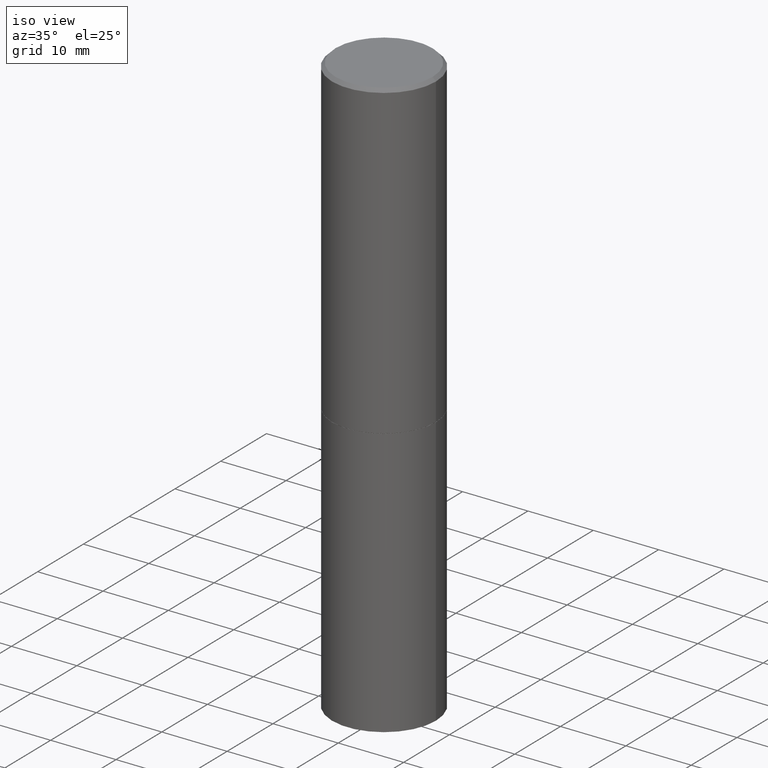
[diagram: clean part render]
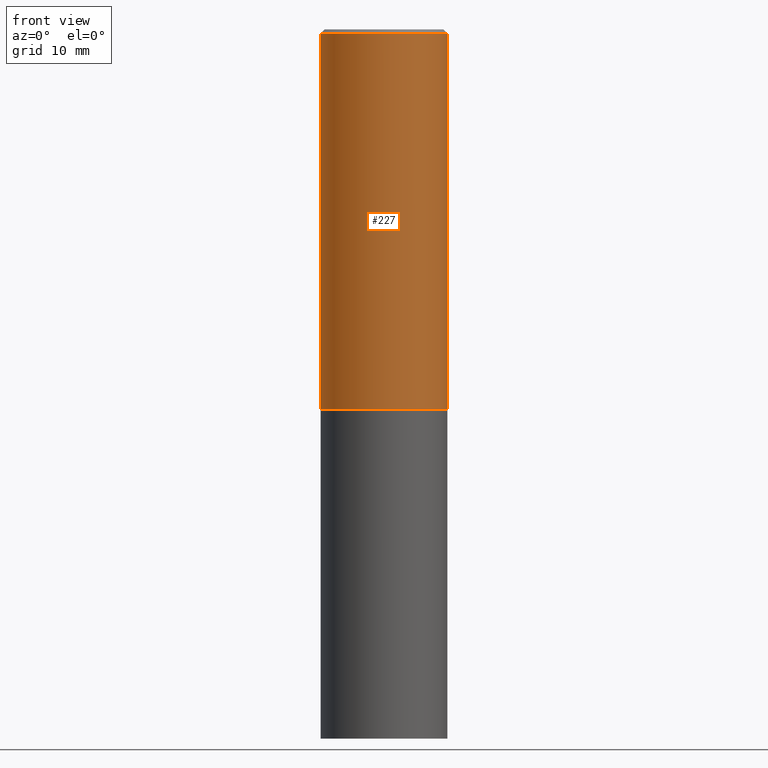
[diagram: tour spotlight — one face highlighted and labeled with its STEP entity id]
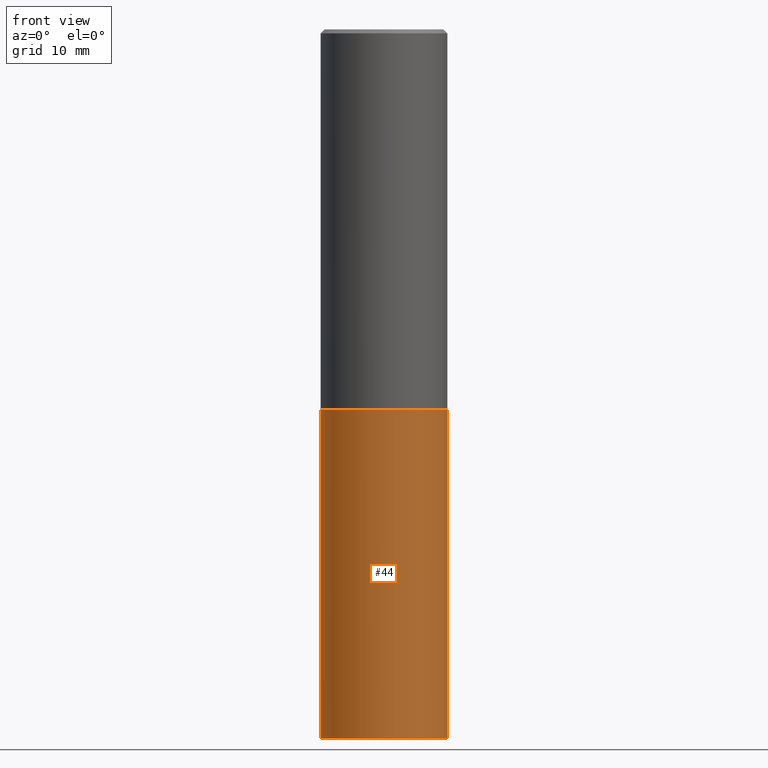
[diagram: tour spotlight — one face highlighted and labeled with its STEP entity id]
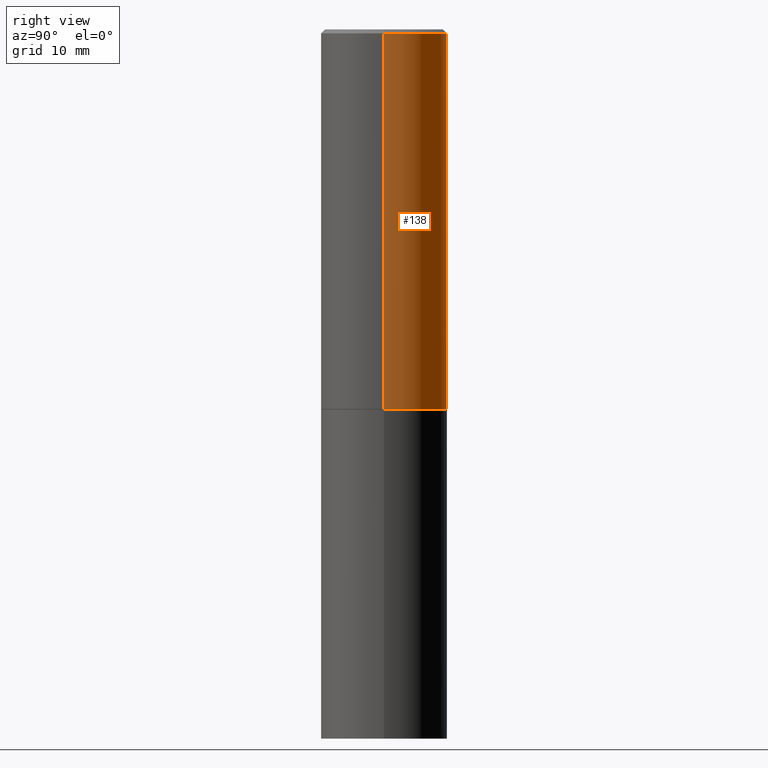
[diagram: tour spotlight — one face highlighted and labeled with its STEP entity id]
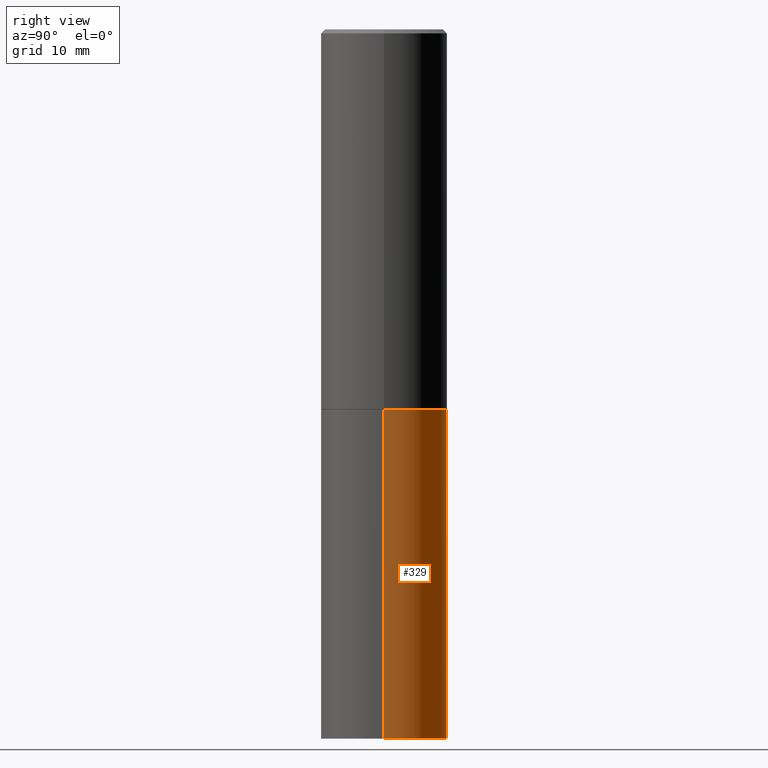
[diagram: tour spotlight — one face highlighted and labeled with its STEP entity id]
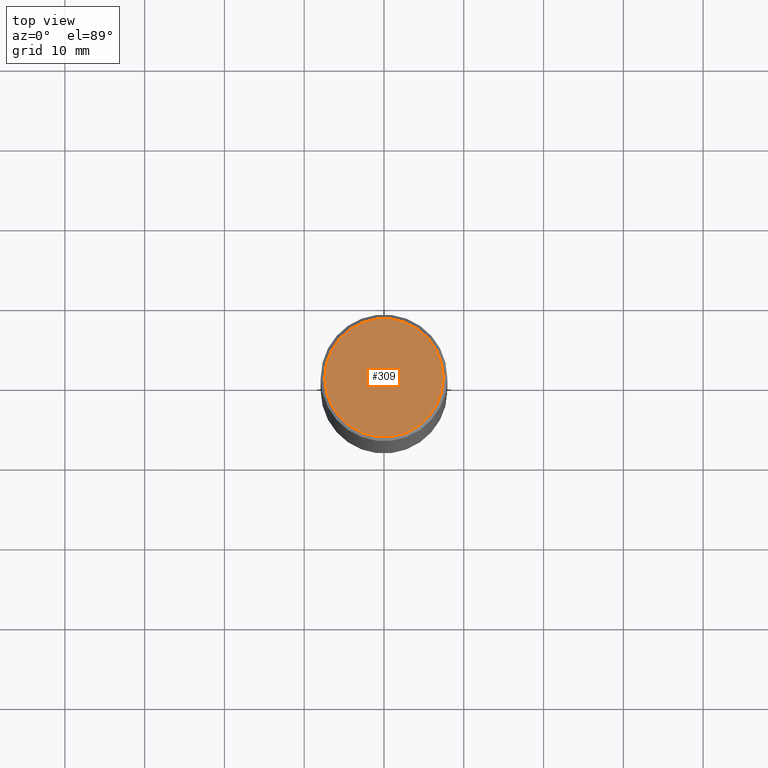
[diagram: tour spotlight — one face highlighted and labeled with its STEP entity id]
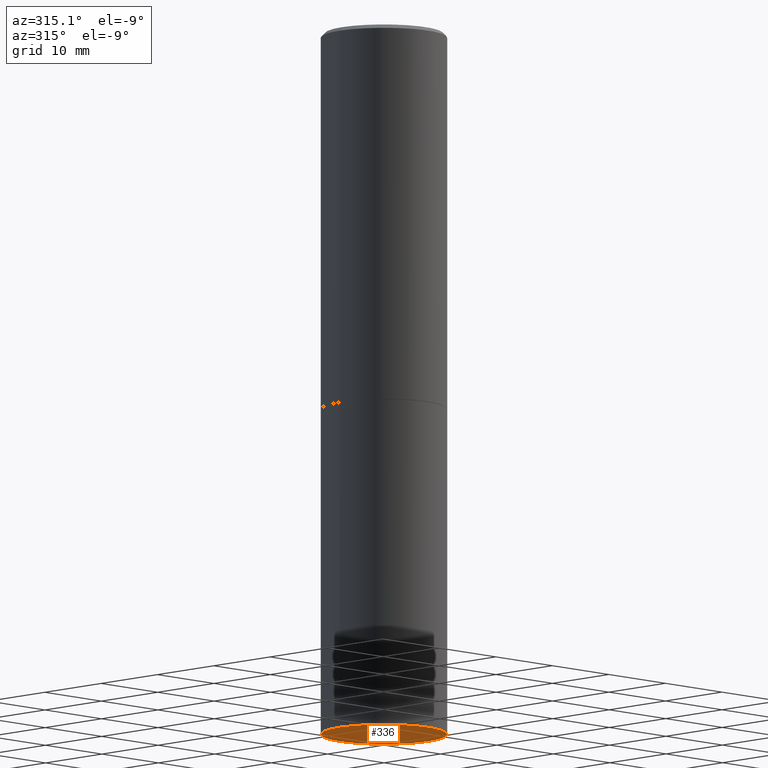
[diagram: tour spotlight — one face highlighted and labeled with its STEP entity id]
A machine part: a face-by-face anatomy tour. The part has 12 B-rep faces; the first image is the clean iso view, then the 6 largest visible faces are spotlighted one at a time (largest first), each with its STEP entity span.

Face 1 — front view, entity #227. In plain terms, the highlighted cylindrical surface (partial cylindrical patch) has radius 7.9375 mm, axis along (-0, 0, 1).
Definition (entity closure, byte-faithful):
#8 = VERTEX_POINT ( 'NONE', #106 ) ;
#38 = DIRECTION ( 'NONE',  ( 1.000000000000000000, -6.982962677686266711E-15, 4.876176775795935232E-29 ) ) ;
#48 = LINE ( 'NONE', #95, #50 ) ;
#50 = VECTOR ( 'NONE', #271, 39.37007874015748143 ) ;
#54 = EDGE_CURVE ( 'NONE', #8, #322, #147, .T. ) ;
#61 = FACE_OUTER_BOUND ( 'NONE', #64, .T. ) ;
#62 = ORIENTED_EDGE ( 'NONE', *, *, #54, .F. ) ;
#64 = EDGE_LOOP ( 'NONE', ( #150, #153, #262, #62 ) ) ;
#65 = LINE ( 'NONE', #289, #269 ) ;
#69 = CARTESIAN_POINT ( 'NONE',  ( 0.3125000000000000000, -8.725211865769012469E-15, -1.873999999999999666 ) ) ;
#95 = CARTESIAN_POINT ( 'NONE',  ( 0.3124999999999998890, -2.182175836776957558E-15, 1.523805242436229235E-29 ) ) ;
#106 = CARTESIAN_POINT ( 'NONE',  ( -0.3124999999999997224, 2.112346210000093471E-15, -0.02000000000000007674 ) ) ;
#124 = CIRCLE ( 'NONE', #187, 0.3125000000000000000 ) ;
#127 = DIRECTION ( 'NONE',  ( -2.445468806185136597E-29, 3.491481338843145583E-15, 1.000000000000000000 ) ) ;
#128 = CARTESIAN_POINT ( 'NONE',  ( 4.890937612370292426E-31, -6.982962677686317493E-17, -0.02000000000000007674 ) ) ;
#130 = AXIS2_PLACEMENT_3D ( 'NONE', #285, #255, #38 ) ;
#147 = CIRCLE ( 'NONE', #202, 0.3124999999999997224 ) ;
#150 = ORIENTED_EDGE ( 'NONE', *, *, #212, .F. ) ;
#153 = ORIENTED_EDGE ( 'NONE', *, *, #283, .T. ) ;
#175 = DIRECTION ( 'NONE',  ( -2.445468806185136877E-29, 3.491481338843145188E-15, 1.000000000000000000 ) ) ;
#181 = CYLINDRICAL_SURFACE ( 'NONE', #130, 0.3124999999999998890 ) ;
#187 = AXIS2_PLACEMENT_3D ( 'NONE', #274, #127, #245 ) ;
#202 = AXIS2_PLACEMENT_3D ( 'NONE', #128, #244, #355 ) ;
#212 = EDGE_CURVE ( 'NONE', #347, #8, #65, .T. ) ;
#227 = ADVANCED_FACE ( 'NONE', ( #61 ), #181, .T. ) ;
#244 = DIRECTION ( 'NONE',  ( -2.445468806185136597E-29, 3.491481338843145583E-15, 1.000000000000000000 ) ) ;
#245 = DIRECTION ( 'NONE',  ( 1.000000000000000000, -6.982962677686265133E-15, 0.000000000000000000 ) ) ;
#255 = DIRECTION ( 'NONE',  ( -2.445468806185136597E-29, 3.491481338843145583E-15, 1.000000000000000000 ) ) ;
#262 = ORIENTED_EDGE ( 'NONE', *, *, #302, .T. ) ;
#269 = VECTOR ( 'NONE', #175, 39.37007874015748143 ) ;
#271 = DIRECTION ( 'NONE',  ( -2.445468806185136877E-29, 3.491481338843145188E-15, 1.000000000000000000 ) ) ;
#274 = CARTESIAN_POINT ( 'NONE',  ( 4.582808542790944955E-29, -6.543036028992054122E-15, -1.873999999999999666 ) ) ;
#283 = EDGE_CURVE ( 'NONE', #347, #325, #124, .T. ) ;
#285 = CARTESIAN_POINT ( 'NONE',  ( 0.000000000000000000, 0.000000000000000000, 0.000000000000000000 ) ) ;
#289 = CARTESIAN_POINT ( 'NONE',  ( -0.3124999999999998890, 2.220446049250312292E-15, -1.537167215704657391E-29 ) ) ;
#302 = EDGE_CURVE ( 'NONE', #325, #322, #48, .T. ) ;
#322 = VERTEX_POINT ( 'NONE', #331 ) ;
#325 = VERTEX_POINT ( 'NONE', #69 ) ;
#331 = CARTESIAN_POINT ( 'NONE',  ( 0.3124999999999997224, -2.213735251080464939E-15, -0.02000000000000007674 ) ) ;
#332 = CARTESIAN_POINT ( 'NONE',  ( -0.3125000000000000000, -1.085986778634144643E-15, -1.873999999999999666 ) ) ;
#347 = VERTEX_POINT ( 'NONE', #332 ) ;
#355 = DIRECTION ( 'NONE',  ( 1.000000000000000000, -6.982962677686266711E-15, 0.000000000000000000 ) ) ;

Face 2 — front view, entity #44. In plain terms, the highlighted cylindrical surface (partial cylindrical patch) has radius 7.9375 mm, axis along (-0, 0, 1).
Definition (entity closure, byte-faithful):
#4 = VECTOR ( 'NONE', #78, 39.37007874015748143 ) ;
#9 = EDGE_CURVE ( 'NONE', #39, #41, #352, .T. ) ;
#11 = VERTEX_POINT ( 'NONE', #193 ) ;
#17 = CYLINDRICAL_SURFACE ( 'NONE', #356, 0.3125000000000000000 ) ;
#32 = ORIENTED_EDGE ( 'NONE', *, *, #9, .F. ) ;
#39 = VERTEX_POINT ( 'NONE', #275 ) ;
#41 = VERTEX_POINT ( 'NONE', #132 ) ;
#44 = ADVANCED_FACE ( 'NONE', ( #242 ), #17, .T. ) ;
#75 = DIRECTION ( 'NONE',  ( 1.000000000000000000, -6.982962677686266711E-15, 4.876176775795936353E-29 ) ) ;
#78 = DIRECTION ( 'NONE',  ( -2.445468806185136877E-29, 3.491481338843145188E-15, 1.000000000000000000 ) ) ;
#82 = VECTOR ( 'NONE', #161, 39.37007874015748143 ) ;
#87 = DIRECTION ( 'NONE',  ( -2.445468806185136597E-29, 3.491481338843145583E-15, 1.000000000000000000 ) ) ;
#93 = DIRECTION ( 'NONE',  ( 1.000000000000000000, -6.982962677686265133E-15, 0.000000000000000000 ) ) ;
#103 = CARTESIAN_POINT ( 'NONE',  ( 0.3125000000000000000, -2.182175836776958347E-15, 1.523805242436230075E-29 ) ) ;
#123 = ORIENTED_EDGE ( 'NONE', *, *, #251, .T. ) ;
#131 = LINE ( 'NONE', #103, #82 ) ;
#132 = CARTESIAN_POINT ( 'NONE',  ( -0.3125000000000000000, -7.162910048890640155E-15, -1.874999999999999778 ) ) ;
#161 = DIRECTION ( 'NONE',  ( -2.445468806185136877E-29, 3.491481338843145188E-15, 1.000000000000000000 ) ) ;
#162 = CIRCLE ( 'NONE', #206, 0.3125000000000000000 ) ;
#176 = DIRECTION ( 'NONE',  ( 1.000000000000000000, -6.982962677686269077E-15, 0.000000000000000000 ) ) ;
#193 = CARTESIAN_POINT ( 'NONE',  ( 0.3125000000000000000, -1.440236052272796769E-14, -3.500000000000000000 ) ) ;
#200 = EDGE_CURVE ( 'NONE', #41, #209, #343, .T. ) ;
#206 = AXIS2_PLACEMENT_3D ( 'NONE', #340, #87, #176 ) ;
#208 = DIRECTION ( 'NONE',  ( -2.445468806185136597E-29, 3.491481338843145583E-15, 1.000000000000000000 ) ) ;
#209 = VERTEX_POINT ( 'NONE', #346 ) ;
#218 = CARTESIAN_POINT ( 'NONE',  ( 0.000000000000000000, 0.000000000000000000, 0.000000000000000000 ) ) ;
#231 = CARTESIAN_POINT ( 'NONE',  ( 4.585254011597130558E-29, -6.546527510330897918E-15, -1.874999999999999778 ) ) ;
#236 = EDGE_LOOP ( 'NONE', ( #32, #123, #265, #259 ) ) ;
#242 = FACE_OUTER_BOUND ( 'NONE', #236, .T. ) ;
#251 = EDGE_CURVE ( 'NONE', #39, #11, #162, .T. ) ;
#259 = ORIENTED_EDGE ( 'NONE', *, *, #200, .F. ) ;
#265 = ORIENTED_EDGE ( 'NONE', *, *, #268, .T. ) ;
#268 = EDGE_CURVE ( 'NONE', #11, #209, #131, .T. ) ;
#275 = CARTESIAN_POINT ( 'NONE',  ( -0.3125000000000000000, -7.162910048890640155E-15, -3.500000000000000000 ) ) ;
#306 = AXIS2_PLACEMENT_3D ( 'NONE', #231, #208, #93 ) ;
#328 = CARTESIAN_POINT ( 'NONE',  ( -0.3125000000000000000, 2.220446049250313081E-15, -1.537167215704658232E-29 ) ) ;
#340 = CARTESIAN_POINT ( 'NONE',  ( 8.559140821647976968E-29, -1.222018468595100934E-14, -3.500000000000000000 ) ) ;
#343 = CIRCLE ( 'NONE', #306, 0.3125000000000000000 ) ;
#346 = CARTESIAN_POINT ( 'NONE',  ( 0.3125000000000000000, -8.728703347107855476E-15, -1.874999999999999778 ) ) ;
#352 = LINE ( 'NONE', #328, #4 ) ;
#353 = DIRECTION ( 'NONE',  ( -2.445468806185136597E-29, 3.491481338843145583E-15, 1.000000000000000000 ) ) ;
#356 = AXIS2_PLACEMENT_3D ( 'NONE', #218, #353, #75 ) ;

Face 3 — right view, entity #138. In plain terms, the highlighted cylindrical surface (partial cylindrical patch) has radius 7.9375 mm, axis along (-0, 0, 1).
Definition (entity closure, byte-faithful):
#8 = VERTEX_POINT ( 'NONE', #106 ) ;
#37 = AXIS2_PLACEMENT_3D ( 'NONE', #58, #145, #321 ) ;
#40 = DIRECTION ( 'NONE',  ( 1.000000000000000000, -6.982962677686266711E-15, 0.000000000000000000 ) ) ;
#48 = LINE ( 'NONE', #95, #50 ) ;
#50 = VECTOR ( 'NONE', #271, 39.37007874015748143 ) ;
#58 = CARTESIAN_POINT ( 'NONE',  ( 4.582808542790944955E-29, -6.543036028992054122E-15, -1.873999999999999666 ) ) ;
#65 = LINE ( 'NONE', #289, #269 ) ;
#66 = EDGE_LOOP ( 'NONE', ( #114, #92, #121, #68 ) ) ;
#68 = ORIENTED_EDGE ( 'NONE', *, *, #302, .F. ) ;
#69 = CARTESIAN_POINT ( 'NONE',  ( 0.3125000000000000000, -8.725211865769012469E-15, -1.873999999999999666 ) ) ;
#92 = ORIENTED_EDGE ( 'NONE', *, *, #212, .T. ) ;
#95 = CARTESIAN_POINT ( 'NONE',  ( 0.3124999999999998890, -2.182175836776957558E-15, 1.523805242436229235E-29 ) ) ;
#106 = CARTESIAN_POINT ( 'NONE',  ( -0.3124999999999997224, 2.112346210000093471E-15, -0.02000000000000007674 ) ) ;
#114 = ORIENTED_EDGE ( 'NONE', *, *, #171, .T. ) ;
#118 = DIRECTION ( 'NONE',  ( -2.445468806185136597E-29, 3.491481338843145583E-15, 1.000000000000000000 ) ) ;
#120 = DIRECTION ( 'NONE',  ( 1.000000000000000000, -6.982962677686266711E-15, 4.876176775795935232E-29 ) ) ;
#121 = ORIENTED_EDGE ( 'NONE', *, *, #151, .F. ) ;
#138 = ADVANCED_FACE ( 'NONE', ( #235 ), #205, .T. ) ;
#145 = DIRECTION ( 'NONE',  ( -2.445468806185136597E-29, 3.491481338843145583E-15, 1.000000000000000000 ) ) ;
#148 = AXIS2_PLACEMENT_3D ( 'NONE', #233, #316, #40 ) ;
#151 = EDGE_CURVE ( 'NONE', #322, #8, #317, .T. ) ;
#171 = EDGE_CURVE ( 'NONE', #325, #347, #261, .T. ) ;
#175 = DIRECTION ( 'NONE',  ( -2.445468806185136877E-29, 3.491481338843145188E-15, 1.000000000000000000 ) ) ;
#205 = CYLINDRICAL_SURFACE ( 'NONE', #249, 0.3124999999999998890 ) ;
#212 = EDGE_CURVE ( 'NONE', #347, #8, #65, .T. ) ;
#233 = CARTESIAN_POINT ( 'NONE',  ( 4.890937612370292426E-31, -6.982962677686317493E-17, -0.02000000000000007674 ) ) ;
#235 = FACE_OUTER_BOUND ( 'NONE', #66, .T. ) ;
#249 = AXIS2_PLACEMENT_3D ( 'NONE', #294, #118, #120 ) ;
#261 = CIRCLE ( 'NONE', #37, 0.3125000000000000000 ) ;
#269 = VECTOR ( 'NONE', #175, 39.37007874015748143 ) ;
#271 = DIRECTION ( 'NONE',  ( -2.445468806185136877E-29, 3.491481338843145188E-15, 1.000000000000000000 ) ) ;
#289 = CARTESIAN_POINT ( 'NONE',  ( -0.3124999999999998890, 2.220446049250312292E-15, -1.537167215704657391E-29 ) ) ;
#294 = CARTESIAN_POINT ( 'NONE',  ( 0.000000000000000000, 0.000000000000000000, 0.000000000000000000 ) ) ;
#302 = EDGE_CURVE ( 'NONE', #325, #322, #48, .T. ) ;
#316 = DIRECTION ( 'NONE',  ( -2.445468806185136597E-29, 3.491481338843145583E-15, 1.000000000000000000 ) ) ;
#317 = CIRCLE ( 'NONE', #148, 0.3124999999999997224 ) ;
#321 = DIRECTION ( 'NONE',  ( 1.000000000000000000, -6.982962677686265133E-15, 0.000000000000000000 ) ) ;
#322 = VERTEX_POINT ( 'NONE', #331 ) ;
#325 = VERTEX_POINT ( 'NONE', #69 ) ;
#331 = CARTESIAN_POINT ( 'NONE',  ( 0.3124999999999997224, -2.213735251080464939E-15, -0.02000000000000007674 ) ) ;
#332 = CARTESIAN_POINT ( 'NONE',  ( -0.3125000000000000000, -1.085986778634144643E-15, -1.873999999999999666 ) ) ;
#347 = VERTEX_POINT ( 'NONE', #332 ) ;

Face 4 — right view, entity #329. In plain terms, the highlighted cylindrical surface (partial cylindrical patch) has radius 7.9375 mm, axis along (-0, 0, 1).
Definition (entity closure, byte-faithful):
#1 = CARTESIAN_POINT ( 'NONE',  ( 4.585254011597130558E-29, -6.546527510330897918E-15, -1.874999999999999778 ) ) ;
#4 = VECTOR ( 'NONE', #78, 39.37007874015748143 ) ;
#5 = AXIS2_PLACEMENT_3D ( 'NONE', #1, #67, #122 ) ;
#9 = EDGE_CURVE ( 'NONE', #39, #41, #352, .T. ) ;
#11 = VERTEX_POINT ( 'NONE', #193 ) ;
#15 = FACE_OUTER_BOUND ( 'NONE', #288, .T. ) ;
#31 = DIRECTION ( 'NONE',  ( 1.000000000000000000, -6.982962677686269077E-15, 0.000000000000000000 ) ) ;
#39 = VERTEX_POINT ( 'NONE', #275 ) ;
#41 = VERTEX_POINT ( 'NONE', #132 ) ;
#55 = CIRCLE ( 'NONE', #5, 0.3125000000000000000 ) ;
#67 = DIRECTION ( 'NONE',  ( -2.445468806185136597E-29, 3.491481338843145583E-15, 1.000000000000000000 ) ) ;
#72 = DIRECTION ( 'NONE',  ( 1.000000000000000000, -6.982962677686266711E-15, 4.876176775795936353E-29 ) ) ;
#78 = DIRECTION ( 'NONE',  ( -2.445468806185136877E-29, 3.491481338843145188E-15, 1.000000000000000000 ) ) ;
#82 = VECTOR ( 'NONE', #161, 39.37007874015748143 ) ;
#103 = CARTESIAN_POINT ( 'NONE',  ( 0.3125000000000000000, -2.182175836776958347E-15, 1.523805242436230075E-29 ) ) ;
#104 = AXIS2_PLACEMENT_3D ( 'NONE', #348, #228, #31 ) ;
#108 = AXIS2_PLACEMENT_3D ( 'NONE', #125, #185, #72 ) ;
#119 = ORIENTED_EDGE ( 'NONE', *, *, #9, .T. ) ;
#122 = DIRECTION ( 'NONE',  ( 1.000000000000000000, -6.982962677686265133E-15, 0.000000000000000000 ) ) ;
#125 = CARTESIAN_POINT ( 'NONE',  ( 0.000000000000000000, 0.000000000000000000, 0.000000000000000000 ) ) ;
#131 = LINE ( 'NONE', #103, #82 ) ;
#132 = CARTESIAN_POINT ( 'NONE',  ( -0.3125000000000000000, -7.162910048890640155E-15, -1.874999999999999778 ) ) ;
#161 = DIRECTION ( 'NONE',  ( -2.445468806185136877E-29, 3.491481338843145188E-15, 1.000000000000000000 ) ) ;
#170 = CIRCLE ( 'NONE', #104, 0.3125000000000000000 ) ;
#185 = DIRECTION ( 'NONE',  ( -2.445468806185136597E-29, 3.491481338843145583E-15, 1.000000000000000000 ) ) ;
#189 = EDGE_CURVE ( 'NONE', #11, #39, #170, .T. ) ;
#193 = CARTESIAN_POINT ( 'NONE',  ( 0.3125000000000000000, -1.440236052272796769E-14, -3.500000000000000000 ) ) ;
#209 = VERTEX_POINT ( 'NONE', #346 ) ;
#214 = ORIENTED_EDGE ( 'NONE', *, *, #246, .F. ) ;
#228 = DIRECTION ( 'NONE',  ( -2.445468806185136597E-29, 3.491481338843145583E-15, 1.000000000000000000 ) ) ;
#238 = CYLINDRICAL_SURFACE ( 'NONE', #108, 0.3125000000000000000 ) ;
#246 = EDGE_CURVE ( 'NONE', #209, #41, #55, .T. ) ;
#257 = ORIENTED_EDGE ( 'NONE', *, *, #189, .T. ) ;
#268 = EDGE_CURVE ( 'NONE', #11, #209, #131, .T. ) ;
#275 = CARTESIAN_POINT ( 'NONE',  ( -0.3125000000000000000, -7.162910048890640155E-15, -3.500000000000000000 ) ) ;
#288 = EDGE_LOOP ( 'NONE', ( #257, #119, #214, #350 ) ) ;
#328 = CARTESIAN_POINT ( 'NONE',  ( -0.3125000000000000000, 2.220446049250313081E-15, -1.537167215704658232E-29 ) ) ;
#329 = ADVANCED_FACE ( 'NONE', ( #15 ), #238, .T. ) ;
#346 = CARTESIAN_POINT ( 'NONE',  ( 0.3125000000000000000, -8.728703347107855476E-15, -1.874999999999999778 ) ) ;
#348 = CARTESIAN_POINT ( 'NONE',  ( 8.559140821647976968E-29, -1.222018468595100934E-14, -3.500000000000000000 ) ) ;
#350 = ORIENTED_EDGE ( 'NONE', *, *, #268, .F. ) ;
#352 = LINE ( 'NONE', #328, #4 ) ;

Face 5 — top view, entity #309. In plain terms, the highlighted planar face has unit normal (0, -0, -1).
Definition (entity closure, byte-faithful):
#13 = AXIS2_PLACEMENT_3D ( 'NONE', #16, #221, #270 ) ;
#16 = CARTESIAN_POINT ( 'NONE',  ( 2.042516583223230567E-15, 0.2924999999999997047, -1.019124035366569015E-15 ) ) ;
#35 = EDGE_CURVE ( 'NONE', #341, #295, #312, .T. ) ;
#36 = CIRCLE ( 'NONE', #291, 0.2924999999999997047 ) ;
#71 = EDGE_CURVE ( 'NONE', #295, #341, #36, .T. ) ;
#91 = ORIENTED_EDGE ( 'NONE', *, *, #35, .T. ) ;
#98 = FACE_OUTER_BOUND ( 'NONE', #239, .T. ) ;
#99 = DIRECTION ( 'NONE',  ( 1.000000000000000000, -6.982962677686266711E-15, 4.876067333457694521E-29 ) ) ;
#157 = DIRECTION ( 'NONE',  ( -2.445468806185136597E-29, 3.491481338843145583E-15, 1.000000000000000000 ) ) ;
#159 = CARTESIAN_POINT ( 'NONE',  ( -1.043851414335219820E-46, 1.490343170380447200E-32, 4.268512490100411279E-18 ) ) ;
#164 = CARTESIAN_POINT ( 'NONE',  ( -1.043851414335219820E-46, 1.490343170380447200E-32, 4.268512490100411279E-18 ) ) ;
#221 = DIRECTION ( 'NONE',  ( 2.438088387897960049E-29, -3.491481338843145188E-15, -1.000000000000000000 ) ) ;
#239 = EDGE_LOOP ( 'NONE', ( #345, #91 ) ) ;
#247 = CARTESIAN_POINT ( 'NONE',  ( -0.2924999999999997047, 2.077431396611662216E-15, 4.268512490086005323E-18 ) ) ;
#253 = AXIS2_PLACEMENT_3D ( 'NONE', #159, #157, #99 ) ;
#270 = DIRECTION ( 'NONE',  ( -1.000000000000000000, 6.982962677686265922E-15, -4.876176775795935793E-29 ) ) ;
#277 = DIRECTION ( 'NONE',  ( 1.000000000000000000, -6.982962677686266711E-15, 4.876067333457694521E-29 ) ) ;
#281 = DIRECTION ( 'NONE',  ( -2.445468806185136597E-29, 3.491481338843145583E-15, 1.000000000000000000 ) ) ;
#291 = AXIS2_PLACEMENT_3D ( 'NONE', #164, #281, #277 ) ;
#295 = VERTEX_POINT ( 'NONE', #247 ) ;
#297 = CARTESIAN_POINT ( 'NONE',  ( 0.2924999999999997047, -2.110215457714317959E-15, 4.268512490114932791E-18 ) ) ;
#309 = ADVANCED_FACE ( 'NONE', ( #98 ), #354, .F. ) ;
#312 = CIRCLE ( 'NONE', #253, 0.2924999999999997047 ) ;
#341 = VERTEX_POINT ( 'NONE', #297 ) ;
#345 = ORIENTED_EDGE ( 'NONE', *, *, #71, .T. ) ;
#354 = PLANE ( 'NONE',  #13 ) ;

Face 6 — auxiliary view, entity #336. In plain terms, the highlighted planar face has unit normal (0, -0, -1).
Definition (entity closure, byte-faithful):
#3 = ORIENTED_EDGE ( 'NONE', *, *, #189, .F. ) ;
#11 = VERTEX_POINT ( 'NONE', #193 ) ;
#31 = DIRECTION ( 'NONE',  ( 1.000000000000000000, -6.982962677686269077E-15, 0.000000000000000000 ) ) ;
#39 = VERTEX_POINT ( 'NONE', #275 ) ;
#70 = ORIENTED_EDGE ( 'NONE', *, *, #251, .F. ) ;
#76 = FACE_OUTER_BOUND ( 'NONE', #323, .T. ) ;
#87 = DIRECTION ( 'NONE',  ( -2.445468806185136597E-29, 3.491481338843145583E-15, 1.000000000000000000 ) ) ;
#104 = AXIS2_PLACEMENT_3D ( 'NONE', #348, #228, #31 ) ;
#141 = AXIS2_PLACEMENT_3D ( 'NONE', #273, #217, #156 ) ;
#156 = DIRECTION ( 'NONE',  ( -1.000000000000000000, 6.982962677686265922E-15, -4.876176775795935793E-29 ) ) ;
#162 = CIRCLE ( 'NONE', #206, 0.3125000000000000000 ) ;
#170 = CIRCLE ( 'NONE', #104, 0.3125000000000000000 ) ;
#176 = DIRECTION ( 'NONE',  ( 1.000000000000000000, -6.982962677686269077E-15, 0.000000000000000000 ) ) ;
#189 = EDGE_CURVE ( 'NONE', #11, #39, #170, .T. ) ;
#192 = PLANE ( 'NONE',  #141 ) ;
#193 = CARTESIAN_POINT ( 'NONE',  ( 0.3125000000000000000, -1.440236052272796769E-14, -3.500000000000000000 ) ) ;
#206 = AXIS2_PLACEMENT_3D ( 'NONE', #340, #87, #176 ) ;
#217 = DIRECTION ( 'NONE',  ( 2.438088387897960049E-29, -3.491481338843145188E-15, -1.000000000000000000 ) ) ;
#228 = DIRECTION ( 'NONE',  ( -2.445468806185136597E-29, 3.491481338843145583E-15, 1.000000000000000000 ) ) ;
#251 = EDGE_CURVE ( 'NONE', #39, #11, #162, .T. ) ;
#273 = CARTESIAN_POINT ( 'NONE',  ( 2.182175836777043938E-15, 0.3124999999999877875, -3.500000000000000888 ) ) ;
#275 = CARTESIAN_POINT ( 'NONE',  ( -0.3125000000000000000, -7.162910048890640155E-15, -3.500000000000000000 ) ) ;
#323 = EDGE_LOOP ( 'NONE', ( #3, #70 ) ) ;
#336 = ADVANCED_FACE ( 'NONE', ( #76 ), #192, .T. ) ;
#340 = CARTESIAN_POINT ( 'NONE',  ( 8.559140821647976968E-29, -1.222018468595100934E-14, -3.500000000000000000 ) ) ;
#348 = CARTESIAN_POINT ( 'NONE',  ( 8.559140821647976968E-29, -1.222018468595100934E-14, -3.500000000000000000 ) ) ;